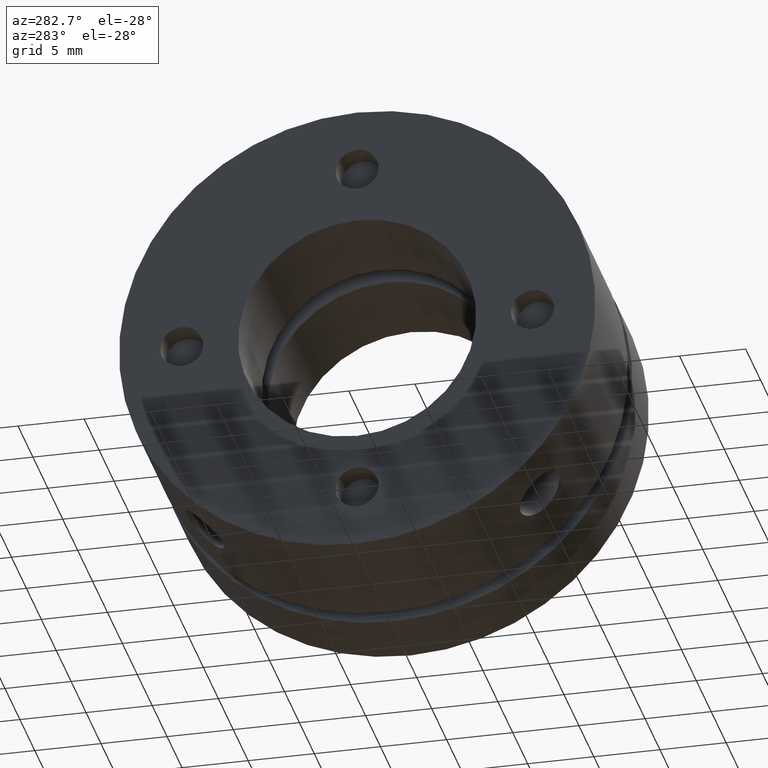
[diagram: clean part render]
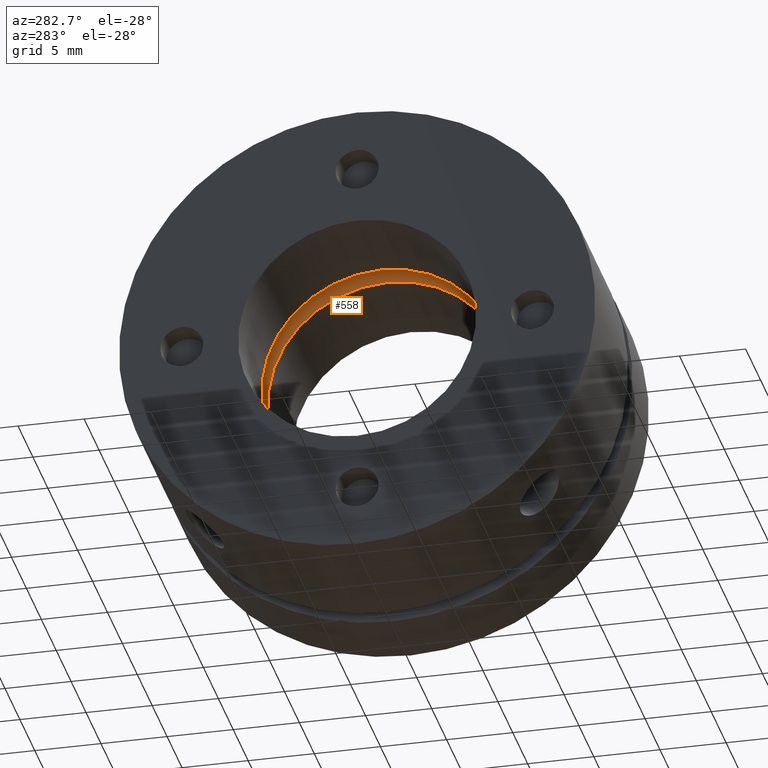
[diagram: same view with one face highlighted and labeled with its STEP entity id]
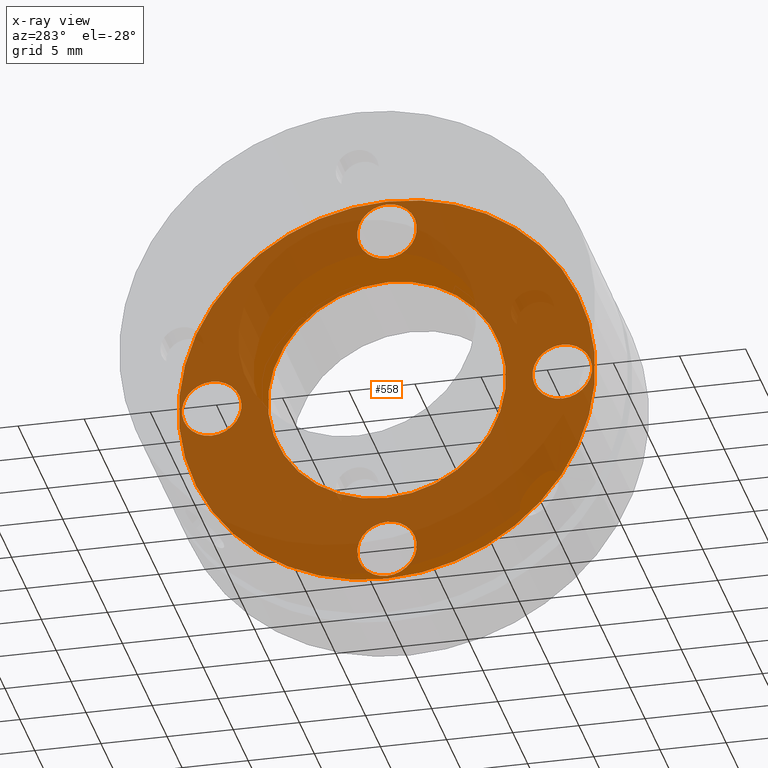
[diagram: x-ray of the same camera — body ghosted, the highlighted face saturated]
A machine part, auxiliary view. The second image highlights one B-rep face of the part: STEP entity #558.
The next image is the same camera in x-ray: the body ghosted, the highlighted face saturated — about 86% of this face is hidden behind the body in this view.
In plain terms, the highlighted planar face has unit normal (1, 0, 0).
Its self-contained STEP definition (entity closure, byte-faithful):
#353 = DIRECTION ( 'NONE',  ( 1.000000000000000000, -0.0000000000000000000, 0.0000000000000000000 ) ) ;
#355 = PLANE ( 'NONE',  #1762 ) ;
#357 = CARTESIAN_POINT ( 'NONE',  ( 10.00000000000001600, 7.875000000000001800, 0.0000000000000000000 ) ) ;
#359 = DIRECTION ( 'NONE',  ( 0.0000000000000000000, 0.0000000000000000000, -1.000000000000000000 ) ) ;
#558 = ADVANCED_FACE ( 'NONE', ( #1510, #1518, #1514, #1512, #1516, #1519 ), #355, .F. ) ;
#619 = EDGE_CURVE ( 'NONE', #1236, #1218, #1629, .T. ) ;
#736 = EDGE_LOOP ( 'NONE', ( #946, #947 ) ) ;
#745 = EDGE_LOOP ( 'NONE', ( #942, #943 ) ) ;
#746 = EDGE_LOOP ( 'NONE', ( #950, #951 ) ) ;
#752 = EDGE_LOOP ( 'NONE', ( #944, #945 ) ) ;
#753 = EDGE_LOOP ( 'NONE', ( #948, #949 ) ) ;
#754 = EDGE_LOOP ( 'NONE', ( #952, #953 ) ) ;
#942 = ORIENTED_EDGE ( 'NONE', *, *, #619, .F. ) ;
#943 = ORIENTED_EDGE ( 'NONE', *, *, #1044, .F. ) ;
#944 = ORIENTED_EDGE ( 'NONE', *, *, #1052, .T. ) ;
#945 = ORIENTED_EDGE ( 'NONE', *, *, #998, .T. ) ;
#946 = ORIENTED_EDGE ( 'NONE', *, *, #1053, .T. ) ;
#947 = ORIENTED_EDGE ( 'NONE', *, *, #1002, .T. ) ;
#948 = ORIENTED_EDGE ( 'NONE', *, *, #1054, .T. ) ;
#949 = ORIENTED_EDGE ( 'NONE', *, *, #1006, .T. ) ;
#950 = ORIENTED_EDGE ( 'NONE', *, *, #1055, .T. ) ;
#951 = ORIENTED_EDGE ( 'NONE', *, *, #1010, .T. ) ;
#952 = ORIENTED_EDGE ( 'NONE', *, *, #1014, .F. ) ;
#953 = ORIENTED_EDGE ( 'NONE', *, *, #1050, .F. ) ;
#998 = EDGE_CURVE ( 'NONE', #1312, #1284, #2501, .T. ) ;
#1002 = EDGE_CURVE ( 'NONE', #1346, #1344, #2508, .T. ) ;
#1006 = EDGE_CURVE ( 'NONE', #1355, #1377, #2514, .T. ) ;
#1010 = EDGE_CURVE ( 'NONE', #1366, #1356, #2520, .T. ) ;
#1014 = EDGE_CURVE ( 'NONE', #1375, #1365, #2526, .T. ) ;
#1044 = EDGE_CURVE ( 'NONE', #1218, #1236, #2570, .T. ) ;
#1050 = EDGE_CURVE ( 'NONE', #1365, #1375, #2576, .T. ) ;
#1052 = EDGE_CURVE ( 'NONE', #1284, #1312, #2578, .T. ) ;
#1053 = EDGE_CURVE ( 'NONE', #1344, #1346, #2579, .T. ) ;
#1054 = EDGE_CURVE ( 'NONE', #1377, #1355, #2580, .T. ) ;
#1055 = EDGE_CURVE ( 'NONE', #1356, #1366, #2581, .T. ) ;
#1218 = VERTEX_POINT ( 'NONE', #3094 ) ;
#1236 = VERTEX_POINT ( 'NONE', #3112 ) ;
#1284 = VERTEX_POINT ( 'NONE', #3138 ) ;
#1312 = VERTEX_POINT ( 'NONE', #3165 ) ;
#1344 = VERTEX_POINT ( 'NONE', #3197 ) ;
#1346 = VERTEX_POINT ( 'NONE', #3199 ) ;
#1355 = VERTEX_POINT ( 'NONE', #3208 ) ;
#1356 = VERTEX_POINT ( 'NONE', #3209 ) ;
#1365 = VERTEX_POINT ( 'NONE', #3218 ) ;
#1366 = VERTEX_POINT ( 'NONE', #3219 ) ;
#1375 = VERTEX_POINT ( 'NONE', #3228 ) ;
#1377 = VERTEX_POINT ( 'NONE', #3230 ) ;
#1510 = FACE_BOUND ( 'NONE', #745, .T. ) ;
#1512 = FACE_BOUND ( 'NONE', #753, .T. ) ;
#1514 = FACE_BOUND ( 'NONE', #736, .T. ) ;
#1516 = FACE_BOUND ( 'NONE', #746, .T. ) ;
#1518 = FACE_BOUND ( 'NONE', #752, .T. ) ;
#1519 = FACE_OUTER_BOUND ( 'NONE', #754, .T. ) ;
#1629 = CIRCLE ( 'NONE', #1819, 9.000000000000001800 ) ;
#1762 = AXIS2_PLACEMENT_3D ( 'NONE', #357, #353, #359 ) ;
#1819 = AXIS2_PLACEMENT_3D ( 'NONE', #2122, #2123, #2124 ) ;
#1860 = AXIS2_PLACEMENT_3D ( 'NONE', #2335, #2336, #2337 ) ;
#1862 = AXIS2_PLACEMENT_3D ( 'NONE', #2345, #2346, #2347 ) ;
#1864 = AXIS2_PLACEMENT_3D ( 'NONE', #2355, #2356, #2357 ) ;
#1866 = AXIS2_PLACEMENT_3D ( 'NONE', #2365, #2366, #2367 ) ;
#1868 = AXIS2_PLACEMENT_3D ( 'NONE', #2376, #2377, #2378 ) ;
#1888 = AXIS2_PLACEMENT_3D ( 'NONE', #2883, #2884, #2885 ) ;
#1894 = AXIS2_PLACEMENT_3D ( 'NONE', #2901, #2902, #2903 ) ;
#1896 = AXIS2_PLACEMENT_3D ( 'NONE', #2907, #2908, #2909 ) ;
#1897 = AXIS2_PLACEMENT_3D ( 'NONE', #2910, #2911, #2912 ) ;
#1898 = AXIS2_PLACEMENT_3D ( 'NONE', #2913, #2914, #2915 ) ;
#1899 = AXIS2_PLACEMENT_3D ( 'NONE', #2916, #2917, #2918 ) ;
#2122 = CARTESIAN_POINT ( 'NONE',  ( 10.00000000000001600, 0.0000000000000000000, 0.0000000000000000000 ) ) ;
#2123 = DIRECTION ( 'NONE',  ( -1.000000000000000000, -0.0000000000000000000, -0.0000000000000000000 ) ) ;
#2124 = DIRECTION ( 'NONE',  ( 0.0000000000000000000, 0.0000000000000000000, -1.000000000000000000 ) ) ;
#2335 = CARTESIAN_POINT ( 'NONE',  ( 9.999999999999996400, 0.0000000000000000000, 13.25000000000000900 ) ) ;
#2336 = DIRECTION ( 'NONE',  ( 1.000000000000000000, 0.0000000000000000000, 0.0000000000000000000 ) ) ;
#2337 = DIRECTION ( 'NONE',  ( 0.0000000000000000000, 0.0000000000000000000, -1.000000000000000000 ) ) ;
#2345 = CARTESIAN_POINT ( 'NONE',  ( 9.999999999999996400, -13.25000000000000900, 8.113284999999999900E-016 ) ) ;
#2346 = DIRECTION ( 'NONE',  ( 1.000000000000000000, 0.0000000000000000000, 0.0000000000000000000 ) ) ;
#2347 = DIRECTION ( 'NONE',  ( 0.0000000000000000000, 0.0000000000000000000, -1.000000000000000000 ) ) ;
#2355 = CARTESIAN_POINT ( 'NONE',  ( 9.999999999999996400, -1.622657000000000000E-015, -13.25000000000000900 ) ) ;
#2356 = DIRECTION ( 'NONE',  ( 1.000000000000000000, 0.0000000000000000000, 0.0000000000000000000 ) ) ;
#2357 = DIRECTION ( 'NONE',  ( 0.0000000000000000000, 0.0000000000000000000, -1.000000000000000000 ) ) ;
#2365 = CARTESIAN_POINT ( 'NONE',  ( 9.999999999999996400, 13.25000000000000900, -2.433985999999999900E-015 ) ) ;
#2366 = DIRECTION ( 'NONE',  ( 1.000000000000000000, 0.0000000000000000000, 0.0000000000000000000 ) ) ;
#2367 = DIRECTION ( 'NONE',  ( 0.0000000000000000000, 0.0000000000000000000, -1.000000000000000000 ) ) ;
#2376 = CARTESIAN_POINT ( 'NONE',  ( 10.00000000000001400, 0.0000000000000000000, 0.0000000000000000000 ) ) ;
#2377 = DIRECTION ( 'NONE',  ( 1.000000000000000000, -0.0000000000000000000, -0.0000000000000000000 ) ) ;
#2378 = DIRECTION ( 'NONE',  ( 0.0000000000000000000, 0.0000000000000000000, 1.000000000000000000 ) ) ;
#2501 = CIRCLE ( 'NONE', #1860, 2.250000000000000400 ) ;
#2508 = CIRCLE ( 'NONE', #1862, 2.250000000000000400 ) ;
#2514 = CIRCLE ( 'NONE', #1864, 2.250000000000000400 ) ;
#2520 = CIRCLE ( 'NONE', #1866, 2.250000000000000400 ) ;
#2526 = CIRCLE ( 'NONE', #1868, 15.75000000000000400 ) ;
#2570 = CIRCLE ( 'NONE', #1888, 9.000000000000001800 ) ;
#2576 = CIRCLE ( 'NONE', #1894, 15.75000000000000400 ) ;
#2578 = CIRCLE ( 'NONE', #1896, 2.250000000000000400 ) ;
#2579 = CIRCLE ( 'NONE', #1897, 2.250000000000000400 ) ;
#2580 = CIRCLE ( 'NONE', #1898, 2.250000000000000400 ) ;
#2581 = CIRCLE ( 'NONE', #1899, 2.250000000000000400 ) ;
#2883 = CARTESIAN_POINT ( 'NONE',  ( 10.00000000000001600, 0.0000000000000000000, 0.0000000000000000000 ) ) ;
#2884 = DIRECTION ( 'NONE',  ( -1.000000000000000000, -0.0000000000000000000, -0.0000000000000000000 ) ) ;
#2885 = DIRECTION ( 'NONE',  ( 0.0000000000000000000, 0.0000000000000000000, -1.000000000000000000 ) ) ;
#2901 = CARTESIAN_POINT ( 'NONE',  ( 10.00000000000001400, 0.0000000000000000000, 0.0000000000000000000 ) ) ;
#2902 = DIRECTION ( 'NONE',  ( 1.000000000000000000, -0.0000000000000000000, -0.0000000000000000000 ) ) ;
#2903 = DIRECTION ( 'NONE',  ( 0.0000000000000000000, 0.0000000000000000000, 1.000000000000000000 ) ) ;
#2907 = CARTESIAN_POINT ( 'NONE',  ( 9.999999999999996400, 0.0000000000000000000, 13.25000000000000900 ) ) ;
#2908 = DIRECTION ( 'NONE',  ( 1.000000000000000000, 0.0000000000000000000, 0.0000000000000000000 ) ) ;
#2909 = DIRECTION ( 'NONE',  ( 0.0000000000000000000, 0.0000000000000000000, -1.000000000000000000 ) ) ;
#2910 = CARTESIAN_POINT ( 'NONE',  ( 9.999999999999996400, -13.25000000000000900, 8.113284999999999900E-016 ) ) ;
#2911 = DIRECTION ( 'NONE',  ( 1.000000000000000000, 0.0000000000000000000, 0.0000000000000000000 ) ) ;
#2912 = DIRECTION ( 'NONE',  ( 0.0000000000000000000, 0.0000000000000000000, -1.000000000000000000 ) ) ;
#2913 = CARTESIAN_POINT ( 'NONE',  ( 9.999999999999996400, -1.622657000000000000E-015, -13.25000000000000900 ) ) ;
#2914 = DIRECTION ( 'NONE',  ( 1.000000000000000000, 0.0000000000000000000, 0.0000000000000000000 ) ) ;
#2915 = DIRECTION ( 'NONE',  ( 0.0000000000000000000, 0.0000000000000000000, -1.000000000000000000 ) ) ;
#2916 = CARTESIAN_POINT ( 'NONE',  ( 9.999999999999996400, 13.25000000000000900, -2.433985999999999900E-015 ) ) ;
#2917 = DIRECTION ( 'NONE',  ( 1.000000000000000000, 0.0000000000000000000, 0.0000000000000000000 ) ) ;
#2918 = DIRECTION ( 'NONE',  ( 0.0000000000000000000, 0.0000000000000000000, -1.000000000000000000 ) ) ;
#3094 = CARTESIAN_POINT ( 'NONE',  ( 10.00000000000001600, 1.102182119232617900E-015, 9.000000000000001800 ) ) ;
#3112 = CARTESIAN_POINT ( 'NONE',  ( 10.00000000000001600, 0.0000000000000000000, -9.000000000000001800 ) ) ;
#3138 = CARTESIAN_POINT ( 'NONE',  ( 9.999999999999996400, 0.0000000000000000000, 11.00000000000000900 ) ) ;
#3165 = CARTESIAN_POINT ( 'NONE',  ( 9.999999999999996400, 2.755455298081544800E-016, 15.50000000000000900 ) ) ;
#3197 = CARTESIAN_POINT ( 'NONE',  ( 9.999999999999996400, -13.25000000000000900, -2.249999999999999600 ) ) ;
#3199 = CARTESIAN_POINT ( 'NONE',  ( 9.999999999999996400, -13.25000000000000900, 2.250000000000001300 ) ) ;
#3208 = CARTESIAN_POINT ( 'NONE',  ( 9.999999999999996400, -1.347111470191845700E-015, -11.00000000000000900 ) ) ;
#3209 = CARTESIAN_POINT ( 'NONE',  ( 9.999999999999996400, 13.25000000000000900, -2.250000000000002700 ) ) ;
#3218 = CARTESIAN_POINT ( 'NONE',  ( 10.00000000000001400, 1.928818708657081700E-015, -15.75000000000000400 ) ) ;
#3219 = CARTESIAN_POINT ( 'NONE',  ( 9.999999999999996400, 13.25000000000000900, 2.249999999999997800 ) ) ;
#3228 = CARTESIAN_POINT ( 'NONE',  ( 10.00000000000001400, 0.0000000000000000000, 15.75000000000000400 ) ) ;
#3230 = CARTESIAN_POINT ( 'NONE',  ( 9.999999999999996400, -1.622657000000000000E-015, -15.50000000000000900 ) ) ;